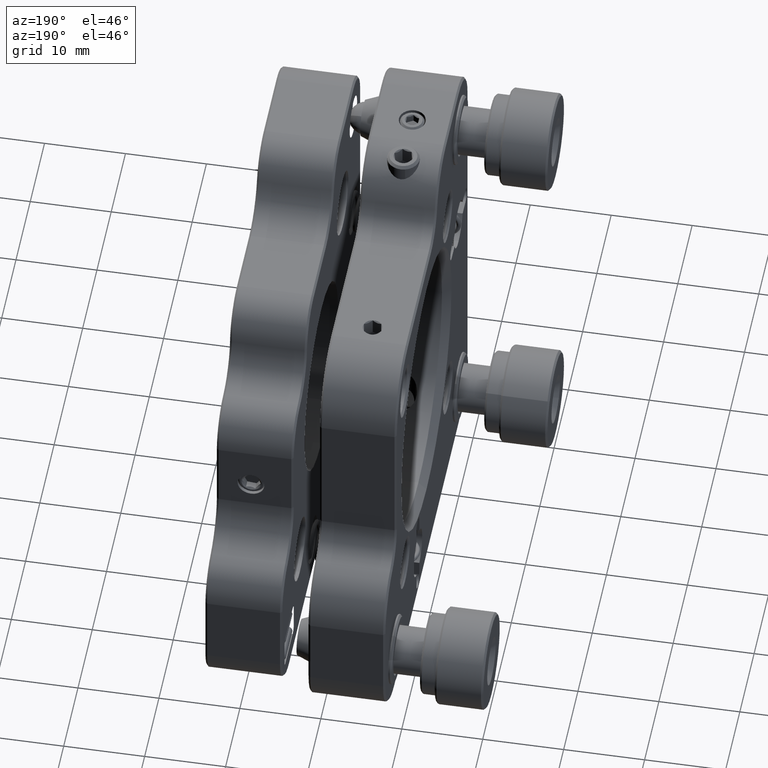
[diagram: clean part render]
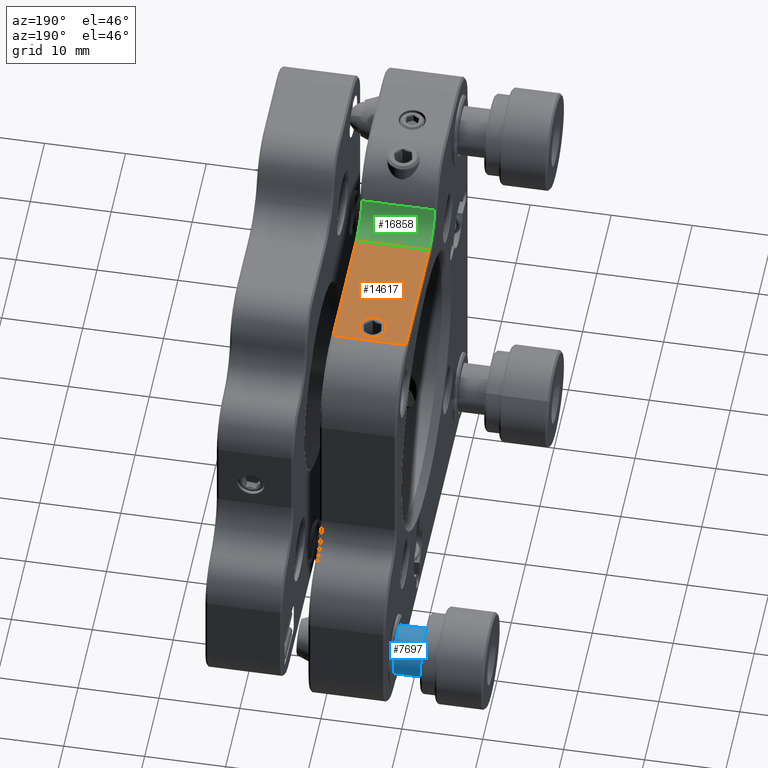
[diagram: same view with three faces highlighted in distinct colors, each labeled with its STEP entity id]
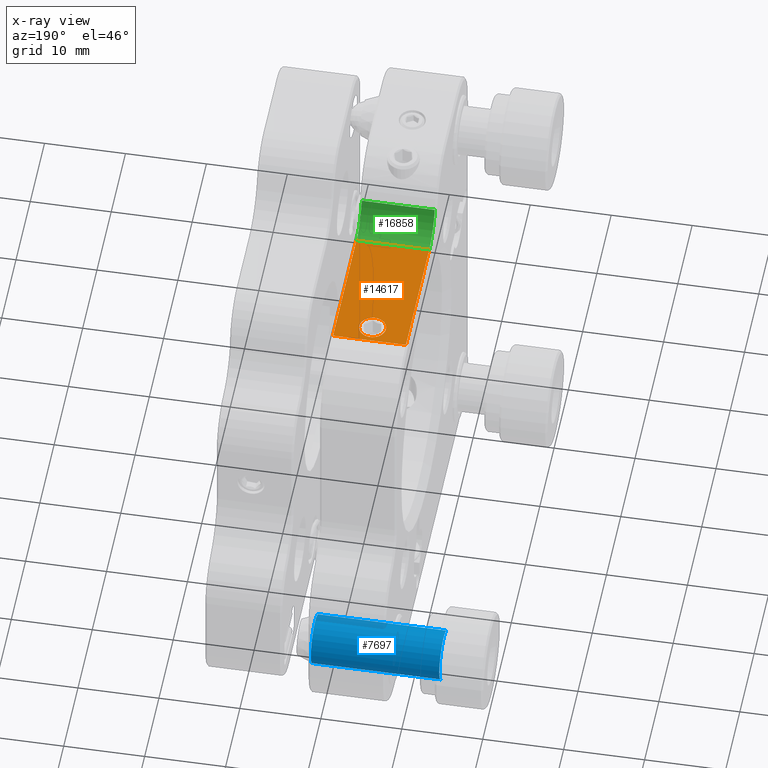
[diagram: x-ray of the same camera — body ghosted, the three highlighted faces saturated]
A machine part, auxiliary view with three faces highlighted in distinct colors.
The next image is the same camera in x-ray (body ghosted, the three faces saturated) — at least one of them is partly hidden behind the body in this view.
Their STEP definitions:

[orange] entity #14617 — the highlighted planar face has unit normal (0, 0, -1).
#844 = CARTESIAN_POINT ( 'NONE',  ( -8.830910080472724744, -11.53389348457386987, 76.00000000000007105 ) ) ;
#1438 = LINE ( 'NONE', #5006, #31781 ) ;
#3817 = ORIENTED_EDGE ( 'NONE', *, *, #5662, .T. ) ;
#3999 = ORIENTED_EDGE ( 'NONE', *, *, #14207, .T. ) ;
#4058 = VERTEX_POINT ( 'NONE', #27903 ) ;
#4875 = VECTOR ( 'NONE', #35951, 1000.000000000000000 ) ;
#5006 = CARTESIAN_POINT ( 'NONE',  ( -8.580910080472724744, 4.768067488240538943, 76.00000000000007105 ) ) ;
#5543 = VECTOR ( 'NONE', #35843, 1000.000000000000000 ) ;
#5662 = EDGE_CURVE ( 'NONE', #6197, #11115, #32468, .T. ) ;
#6197 = VERTEX_POINT ( 'NONE', #26172 ) ;
#6838 = VERTEX_POINT ( 'NONE', #18426 ) ;
#6879 = CIRCLE ( 'NONE', #35769, 1.649999999999989919 ) ;
#7214 = FACE_BOUND ( 'NONE', #24162, .T. ) ;
#7340 = CIRCLE ( 'NONE', #12589, 1.649999999999989919 ) ;
#11115 = VERTEX_POINT ( 'NONE', #844 ) ;
#11583 = VERTEX_POINT ( 'NONE', #33647 ) ;
#12589 = AXIS2_PLACEMENT_3D ( 'NONE', #19374, #28117, #19619 ) ;
#12590 = EDGE_CURVE ( 'NONE', #11115, #11583, #29695, .T. ) ;
#13375 = DIRECTION ( 'NONE',  ( 0.000000000000000000, 2.478176394252582620E-16, -1.000000000000000000 ) ) ;
#13874 = CARTESIAN_POINT ( 'NONE',  ( -13.33091008047272297, 2.568067488240545426, 76.00000000000007105 ) ) ;
#14207 = EDGE_CURVE ( 'NONE', #28979, #4058, #6879, .T. ) ;
#14617 = ADVANCED_FACE ( 'NONE', ( #7214, #31425 ), #15703, .F. ) ;
#15703 = PLANE ( 'NONE',  #18529 ) ;
#16036 = CARTESIAN_POINT ( 'NONE',  ( -8.580910080472724744, -11.53389348457386987, 76.00000000000007105 ) ) ;
#17123 = LINE ( 'NONE', #23985, #4875 ) ;
#18318 = CARTESIAN_POINT ( 'NONE',  ( -11.68091008047273327, 2.568067488240545426, 76.00000000000007105 ) ) ;
#18426 = CARTESIAN_POINT ( 'NONE',  ( -17.83091008047273007, 4.768067488240538943, 76.00000000000007105 ) ) ;
#18529 = AXIS2_PLACEMENT_3D ( 'NONE', #20934, #32303, #29189 ) ;
#18588 = EDGE_CURVE ( 'NONE', #11583, #6838, #1438, .T. ) ;
#19034 = EDGE_CURVE ( 'NONE', #6838, #6197, #17123, .T. ) ;
#19374 = CARTESIAN_POINT ( 'NONE',  ( -13.33091008047272297, 2.568067488240545426, 76.00000000000007105 ) ) ;
#19619 = DIRECTION ( 'NONE',  ( 0.000000000000000000, 1.000000000000000000, 0.000000000000000000 ) ) ;
#20934 = CARTESIAN_POINT ( 'NONE',  ( -8.580910080472724744, -15.23193251175945129, 76.00000000000007105 ) ) ;
#21791 = DIRECTION ( 'NONE',  ( 1.000000000000000000, -0.000000000000000000, -0.000000000000000000 ) ) ;
#23533 = EDGE_LOOP ( 'NONE', ( #3817, #30196, #32256, #24684 ) ) ;
#23985 = CARTESIAN_POINT ( 'NONE',  ( -17.83091008047273007, -15.23193251175945129, 76.00000000000007105 ) ) ;
#24162 = EDGE_LOOP ( 'NONE', ( #3999, #33976 ) ) ;
#24684 = ORIENTED_EDGE ( 'NONE', *, *, #19034, .T. ) ;
#24717 = DIRECTION ( 'NONE',  ( -1.000000000000000000, 0.000000000000000000, 0.000000000000000000 ) ) ;
#26172 = CARTESIAN_POINT ( 'NONE',  ( -17.83091008047273007, -11.53389348457386987, 76.00000000000007105 ) ) ;
#27903 = CARTESIAN_POINT ( 'NONE',  ( -14.98091008047271444, 2.568067488240545426, 76.00000000000007105 ) ) ;
#28117 = DIRECTION ( 'NONE',  ( 0.000000000000000000, 2.478176394252582620E-16, -1.000000000000000000 ) ) ;
#28477 = VECTOR ( 'NONE', #21791, 1000.000000000000000 ) ;
#28979 = VERTEX_POINT ( 'NONE', #18318 ) ;
#29189 = DIRECTION ( 'NONE',  ( 0.000000000000000000, 1.000000000000000000, 2.478176394252582620E-16 ) ) ;
#29695 = LINE ( 'NONE', #29929, #5543 ) ;
#29929 = CARTESIAN_POINT ( 'NONE',  ( -8.830910080472724744, 4.768067488240538943, 76.00000000000007105 ) ) ;
#30196 = ORIENTED_EDGE ( 'NONE', *, *, #12590, .T. ) ;
#31425 = FACE_OUTER_BOUND ( 'NONE', #23533, .T. ) ;
#31781 = VECTOR ( 'NONE', #24717, 1000.000000000000000 ) ;
#32148 = EDGE_CURVE ( 'NONE', #4058, #28979, #7340, .T. ) ;
#32256 = ORIENTED_EDGE ( 'NONE', *, *, #18588, .T. ) ;
#32303 = DIRECTION ( 'NONE',  ( 0.000000000000000000, 2.478176394252582620E-16, -1.000000000000000000 ) ) ;
#32468 = LINE ( 'NONE', #16036, #28477 ) ;
#33647 = CARTESIAN_POINT ( 'NONE',  ( -8.830910080472724744, 4.768067488240538943, 76.00000000000007105 ) ) ;
#33976 = ORIENTED_EDGE ( 'NONE', *, *, #32148, .T. ) ;
#35769 = AXIS2_PLACEMENT_3D ( 'NONE', #13874, #13375, #35896 ) ;
#35843 = DIRECTION ( 'NONE',  ( 0.000000000000000000, 1.000000000000000000, 2.478176394252582620E-16 ) ) ;
#35896 = DIRECTION ( 'NONE',  ( 0.000000000000000000, 1.000000000000000000, 0.000000000000000000 ) ) ;
#35951 = DIRECTION ( 'NONE',  ( 0.000000000000000000, -1.000000000000000000, -2.478176394252582620E-16 ) ) ;

[blue] entity #7697 — the highlighted cylindrical surface (edge-blend (fillet) strip) has radius 3 mm, axis along (1, 0, 0).
#2593 = CARTESIAN_POINT ( 'NONE',  ( -24.15530144449531136, 16.58843743910251334, 30.59845239577429155 ) ) ;
#5902 = EDGE_CURVE ( 'NONE', #23667, #8491, #10384, .T. ) ;
#6719 = CARTESIAN_POINT ( 'NONE',  ( -24.65530144449531136, 14.26806748824053983, 32.50000000000007105 ) ) ;
#7697 = ADVANCED_FACE ( 'NONE', ( #13608 ), #32545, .T. ) ;
#8382 = DIRECTION ( 'NONE',  ( 0.000000000000000000, 0.7734566502873241323, -0.6338492014085936876 ) ) ;
#8491 = VERTEX_POINT ( 'NONE', #31242 ) ;
#8608 = DIRECTION ( 'NONE',  ( -1.000000000000000000, 0.000000000000000000, 0.000000000000000000 ) ) ;
#9075 = VECTOR ( 'NONE', #10424, 1000.000000000000000 ) ;
#9322 = CIRCLE ( 'NONE', #34914, 2.999999999999999112 ) ;
#10384 = LINE ( 'NONE', #35617, #9075 ) ;
#10424 = DIRECTION ( 'NONE',  ( 1.000000000000000000, 0.000000000000000000, 0.000000000000000000 ) ) ;
#12366 = DIRECTION ( 'NONE',  ( 1.000000000000000000, 0.000000000000000000, 0.000000000000000000 ) ) ;
#12986 = ORIENTED_EDGE ( 'NONE', *, *, #34886, .T. ) ;
#13608 = FACE_OUTER_BOUND ( 'NONE', #28195, .T. ) ;
#14394 = CARTESIAN_POINT ( 'NONE',  ( -24.15530144449531136, 14.26806748824053983, 32.50000000000007105 ) ) ;
#14870 = ORIENTED_EDGE ( 'NONE', *, *, #31792, .T. ) ;
#18939 = DIRECTION ( 'NONE',  ( 1.000000000000000000, 0.000000000000000000, 0.000000000000000000 ) ) ;
#19109 = EDGE_CURVE ( 'NONE', #32204, #33244, #24559, .T. ) ;
#19393 = CARTESIAN_POINT ( 'NONE',  ( -8.285301444495321022, 14.26806748824053983, 32.50000000000007105 ) ) ;
#20099 = AXIS2_PLACEMENT_3D ( 'NONE', #14394, #34092, #8382 ) ;
#21895 = CARTESIAN_POINT ( 'NONE',  ( -24.65530144449531136, 16.58843743910251334, 30.59845239577429155 ) ) ;
#22159 = AXIS2_PLACEMENT_3D ( 'NONE', #6719, #12366, #23180 ) ;
#23180 = DIRECTION ( 'NONE',  ( 0.000000000000000000, -0.7734566502873235772, 0.6338492014085943538 ) ) ;
#23667 = VERTEX_POINT ( 'NONE', #29422 ) ;
#24559 = LINE ( 'NONE', #21895, #25458 ) ;
#25458 = VECTOR ( 'NONE', #18939, 1000.000000000000000 ) ;
#28014 = DIRECTION ( 'NONE',  ( 0.000000000000000000, 0.7734566502873241323, -0.6338492014085936876 ) ) ;
#28195 = EDGE_LOOP ( 'NONE', ( #31951, #14870, #34617, #12986 ) ) ;
#29422 = CARTESIAN_POINT ( 'NONE',  ( -24.15530144449531136, 11.94769753737856810, 34.40154760422585412 ) ) ;
#31242 = CARTESIAN_POINT ( 'NONE',  ( -8.285301444495321022, 11.94769753737856632, 34.40154760422585412 ) ) ;
#31792 = EDGE_CURVE ( 'NONE', #32204, #23667, #35559, .T. ) ;
#31951 = ORIENTED_EDGE ( 'NONE', *, *, #19109, .F. ) ;
#32204 = VERTEX_POINT ( 'NONE', #2593 ) ;
#32545 = CYLINDRICAL_SURFACE ( 'NONE', #22159, 3.000000000000001332 ) ;
#33244 = VERTEX_POINT ( 'NONE', #36068 ) ;
#34092 = DIRECTION ( 'NONE',  ( 1.000000000000000000, -0.000000000000000000, -0.000000000000000000 ) ) ;
#34617 = ORIENTED_EDGE ( 'NONE', *, *, #5902, .T. ) ;
#34886 = EDGE_CURVE ( 'NONE', #8491, #33244, #9322, .T. ) ;
#34914 = AXIS2_PLACEMENT_3D ( 'NONE', #19393, #8608, #28014 ) ;
#35559 = CIRCLE ( 'NONE', #20099, 2.999999999999999112 ) ;
#35617 = CARTESIAN_POINT ( 'NONE',  ( -24.65530144449531136, 11.94769753737856810, 34.40154760422585412 ) ) ;
#36068 = CARTESIAN_POINT ( 'NONE',  ( -8.285301444495321022, 16.58843743910251334, 30.59845239577429155 ) ) ;

[green] entity #16858 — the highlighted cylindrical surface (edge-blend (fillet) strip) has radius 4 mm, axis along (-1, 0, 0).
#3 = AXIS2_PLACEMENT_3D ( 'NONE', #15392, #1148, #34956 ) ;
#844 = CARTESIAN_POINT ( 'NONE',  ( -8.830910080472724744, -11.53389348457386987, 76.00000000000007105 ) ) ;
#1148 = DIRECTION ( 'NONE',  ( -1.000000000000000000, -0.000000000000000000, -0.000000000000000000 ) ) ;
#1976 = DIRECTION ( 'NONE',  ( -1.000000000000000000, 0.000000000000000000, 0.000000000000000000 ) ) ;
#5178 = EDGE_LOOP ( 'NONE', ( #8113, #20020, #32873, #16840 ) ) ;
#5662 = EDGE_CURVE ( 'NONE', #6197, #11115, #32468, .T. ) ;
#6197 = VERTEX_POINT ( 'NONE', #26172 ) ;
#7102 = CIRCLE ( 'NONE', #12267, 4.000000000000003553 ) ;
#7314 = EDGE_CURVE ( 'NONE', #10006, #23410, #25619, .T. ) ;
#8113 = ORIENTED_EDGE ( 'NONE', *, *, #7314, .F. ) ;
#8305 = AXIS2_PLACEMENT_3D ( 'NONE', #30407, #1976, #29739 ) ;
#10006 = VERTEX_POINT ( 'NONE', #18308 ) ;
#10444 = CARTESIAN_POINT ( 'NONE',  ( -17.83091008047273007, -15.41886073302551807, 79.04761904761912206 ) ) ;
#11115 = VERTEX_POINT ( 'NONE', #844 ) ;
#12267 = AXIS2_PLACEMENT_3D ( 'NONE', #25291, #25161, #14136 ) ;
#13689 = CIRCLE ( 'NONE', #3, 4.000000000000003553 ) ;
#14136 = DIRECTION ( 'NONE',  ( 0.000000000000000000, 0.000000000000000000, -1.000000000000000000 ) ) ;
#15392 = CARTESIAN_POINT ( 'NONE',  ( -17.83091008047273007, -11.53389348457386987, 80.00000000000005684 ) ) ;
#15872 = CYLINDRICAL_SURFACE ( 'NONE', #8305, 4.000000000000003553 ) ;
#16036 = CARTESIAN_POINT ( 'NONE',  ( -8.580910080472724744, -11.53389348457386987, 76.00000000000007105 ) ) ;
#16840 = ORIENTED_EDGE ( 'NONE', *, *, #25911, .T. ) ;
#16858 = ADVANCED_FACE ( 'NONE', ( #24642 ), #15872, .F. ) ;
#18308 = CARTESIAN_POINT ( 'NONE',  ( -8.830910080472724744, -15.41886073302551807, 79.04761904761912206 ) ) ;
#20020 = ORIENTED_EDGE ( 'NONE', *, *, #34870, .T. ) ;
#21791 = DIRECTION ( 'NONE',  ( 1.000000000000000000, -0.000000000000000000, -0.000000000000000000 ) ) ;
#21991 = DIRECTION ( 'NONE',  ( -1.000000000000000000, 0.000000000000000000, 0.000000000000000000 ) ) ;
#23410 = VERTEX_POINT ( 'NONE', #10444 ) ;
#24642 = FACE_OUTER_BOUND ( 'NONE', #5178, .T. ) ;
#25161 = DIRECTION ( 'NONE',  ( 1.000000000000000000, -0.000000000000000000, -0.000000000000000000 ) ) ;
#25291 = CARTESIAN_POINT ( 'NONE',  ( -8.830910080472724744, -11.53389348457386987, 80.00000000000005684 ) ) ;
#25619 = LINE ( 'NONE', #27034, #28269 ) ;
#25911 = EDGE_CURVE ( 'NONE', #6197, #23410, #13689, .T. ) ;
#26172 = CARTESIAN_POINT ( 'NONE',  ( -17.83091008047273007, -11.53389348457386987, 76.00000000000007105 ) ) ;
#27034 = CARTESIAN_POINT ( 'NONE',  ( -8.580910080472724744, -15.41886073302551807, 79.04761904761912206 ) ) ;
#28269 = VECTOR ( 'NONE', #21991, 1000.000000000000000 ) ;
#28477 = VECTOR ( 'NONE', #21791, 1000.000000000000000 ) ;
#29739 = DIRECTION ( 'NONE',  ( 0.000000000000000000, 0.000000000000000000, 1.000000000000000000 ) ) ;
#30407 = CARTESIAN_POINT ( 'NONE',  ( -8.580910080472724744, -11.53389348457386987, 80.00000000000005684 ) ) ;
#32468 = LINE ( 'NONE', #16036, #28477 ) ;
#32873 = ORIENTED_EDGE ( 'NONE', *, *, #5662, .F. ) ;
#34870 = EDGE_CURVE ( 'NONE', #10006, #11115, #7102, .T. ) ;
#34956 = DIRECTION ( 'NONE',  ( 0.000000000000000000, 0.000000000000000000, -1.000000000000000000 ) ) ;